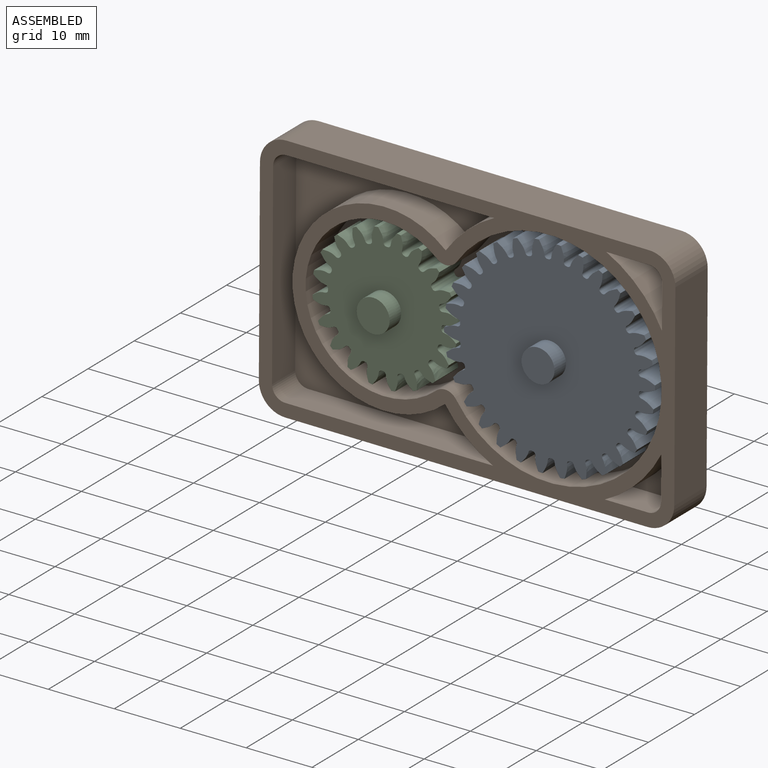
[diagram: assembled view]
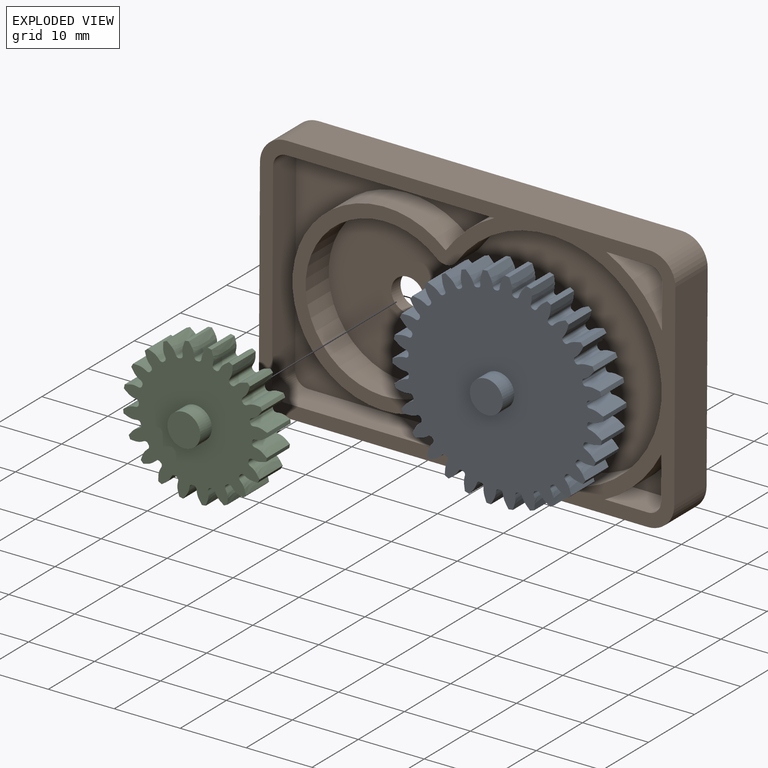
[diagram: exploded view]
GUIDED TOUR — MATED ASSEMBLY (Onshape document 583087b72f537610bfd2e5a7, AutoMate assembly 583087b72f537610bfd2e5a7_b645ddb2881b10e1bcf0ceef_fae67c98a6df52cfcd7068ac_default)

This assembly has 3 components, labeled P0..P2 below (a component is one placed occurrence of a part; the same part can appear more than once), held together by 2 mates. A mate is a constraint between two components; its type names the relative motion it leaves free:
  REVOLUTE — leaves rotation about the listed axis free (a hinge).
Axis/direction vectors are unit vectors and 'through' points are millimeter coordinates, both in the assembly's world frame.

MATES
  1. REVOLUTE "Revolute 1": P0 <-> P1, axis (0.000, 1.000, 0.000) through (-9.87, -35.20, 2.94) mm
  2. REVOLUTE "Revolute 2": P1 <-> P2, axis (0.000, -1.000, 0.000) through (-34.87, -35.20, 3.08) mm

ASSEMBLY ORDER
  1. P1 — the base component [order heuristic]
  2. P0 [order heuristic]
  3. P2 [order heuristic]
Order-tag legend:
  [order heuristic] — this assembly is geometrically interlocked (no collision-free removal order exists), so components are listed in mate-graph order; insertion feasibility is not verified.

Of the 3 components, 2 carry the full construction recipe — the FeatureScript program that regenerates the part's solid from scratch; the rest are supplied as boundary geometry only.
Each toured component is shown spotlighted twice — in the assembled view, then in the exploded view, where a leader line traces a displaced component back to its assembled socket (saturated green if recipe-attached, orange if geometry-only; every other component desaturated gray) — followed by its recipe or geometry summary and the mates that hold it.
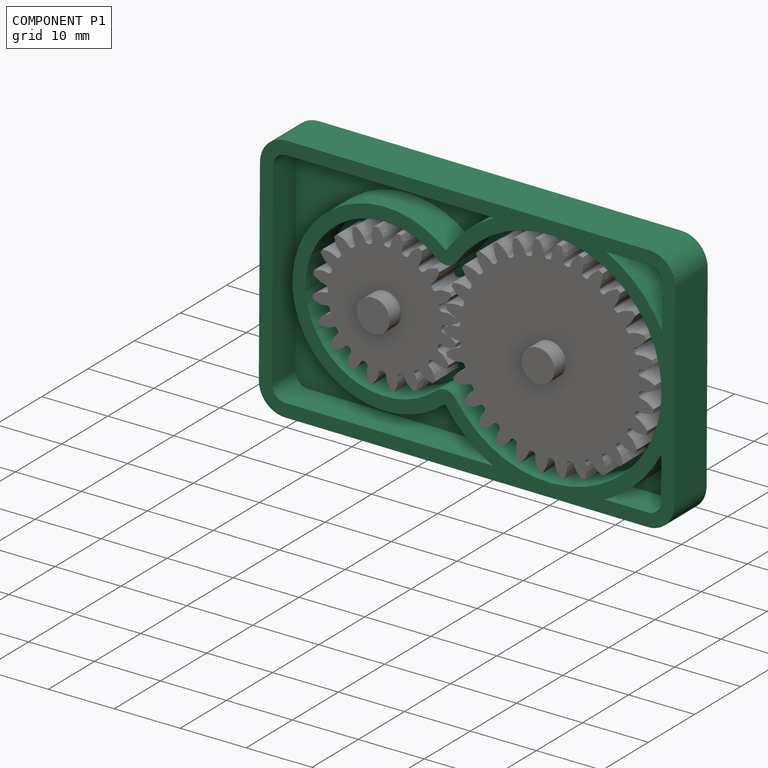
[diagram: component P1 — assembled]
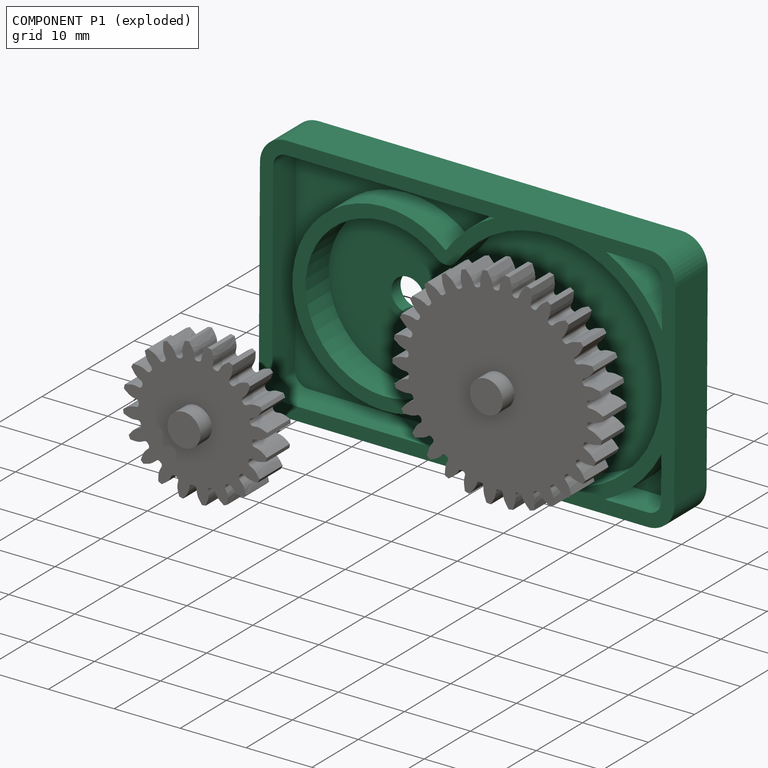
[diagram: component P1 — exploded]
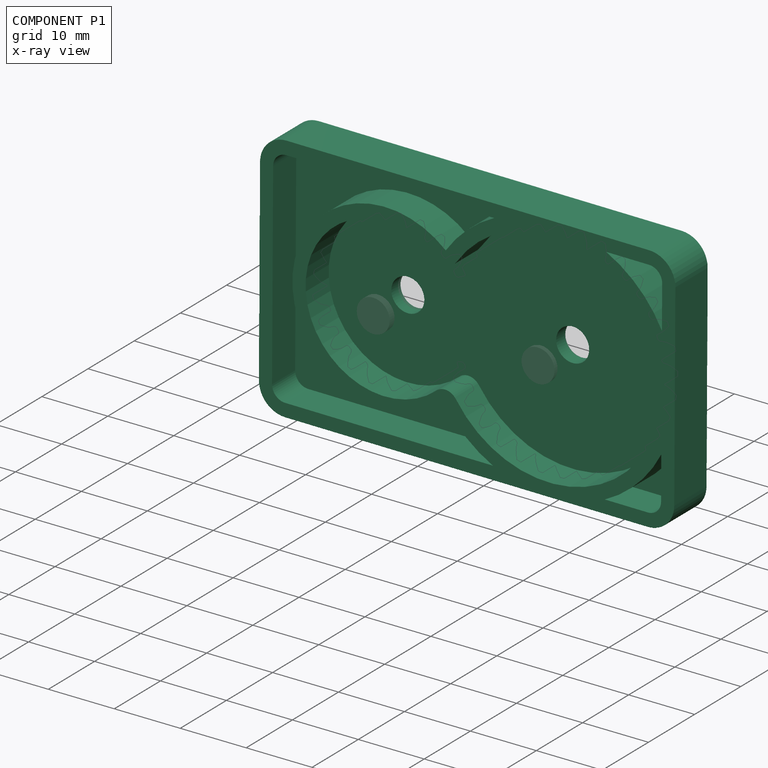
[diagram: component P1 — x-ray view]
COMPONENT P1 — recipe-attached (CADFS 00338432, mesh-verified: the recipe's output STEP matches this component's geometry to below the mesh-comparison resolution (tessellation chordal tolerance ~0.111 mm)).
Held by: REVOLUTE mate "Revolute 1" to P0; REVOLUTE mate "Revolute 2" to P2.
Construction recipe (FeatureScript — the CAD program that rebuilds this solid; sketch coordinates are in the units given by the * unit suffixes, e.g. mm):

FeatureScript 1511;
import(path : "onshape/std/geometry.fs", version : "1511.0");
import(path : "onshape/std/common.fs", version : "1511.0");
const mm = millimeter;
const VERTEX = EntityType.VERTEX;
const EDGE = EntityType.EDGE;
const FACE = EntityType.FACE;
const BODY = EntityType.BODY;
function v(x, y){return vector(x, y);}
function OD(order){return orderDisambiguation(order);}
function OSD(set){return originalSetDisambiguation(set);}
function TD(topology){return topologyDisambiguation(topology);}
function TDD(query){return trueDependencyDisambiguation(query);}
function sQuery(a, b, c) {return sketchEntityQuery(a, b, c);}

annotation { "Feature Type Name" : "Feature", "Feature Type Description" : "" }
export const myFeature = defineFeature(function(context is Context, id is Id, definition is map)
    precondition{}
    {
        {
            var Q0;
            Q0=qCreatedBy(makeId("Front.planeOp"),FACE);
            var sketch = newSketch(context, id + "F0", { "sketchPlane" : qUnion([Q0])});
            skLineSegment(sketch, "E0.bottom", {"start": v(27.5, 19) * mm, "end": v(-27.5, 19) * mm});
            skLineSegment(sketch, "E0.top", {"start": v(27.5, -19) * mm, "end": v(-27.5, -19) * mm});
            skLineSegment(sketch, "E0.left", {"start": v(31.5, 15) * mm, "end": v(31.5, -15) * mm});
            skLineSegment(sketch, "E0.right", {"start": v(-31.5, 15) * mm, "end": v(-31.5, -15) * mm});
            skPoint(sketch, "E0.middle", {"position": v(0, 0) * mm});
            skLineSegment(sketch, "E1", {"start": v(-31.5, 0) * mm, "end": v(31.5, 0) * mm, "construction": true});
            skPoint(sketch, "E2", {"position": v(-12.5, 0) * mm});
            skPoint(sketch, "E3", {"position": v(12.5, 0) * mm});
            skLineSegment(sketch, "E4", {"start": v(0, 19) * mm, "end": v(0, -19) * mm, "construction": true});
            skArc(sketch, "E5", {"start": v(-1.64, -9.44) * mm, "mid": v(29.5, 0) * mm, "end": v(-1.64, 9.44) * mm});
            skArc(sketch, "E6", {"start": v(-4.61, 9.05) * mm, "mid": v(-24.5, 0) * mm, "end": v(-4.61, -9.05) * mm});
            skPoint(sketch, "E7.visualSharp", {"position": v(-2.9, 7.2) * mm});
            skArc(sketch, "E7.filletArc", {"start": v(-4.61, 9.05) * mm, "mid": v(-3.04, 8.57) * mm, "end": v(-1.64, 9.44) * mm});
            skPoint(sketch, "E8.visualSharp", {"position": v(-2.9, -7.2) * mm});
            skArc(sketch, "E8.filletArc", {"start": v(-1.64, -9.44) * mm, "mid": v(-3.04, -8.57) * mm, "end": v(-4.61, -9.05) * mm});
            skPoint(sketch, "E9.visualSharp", {"position": v(-31.5, 19) * mm});
            skArc(sketch, "E9.filletArc", {"start": v(-27.5, 19) * mm, "mid": v(-30.33, 17.83) * mm, "end": v(-31.5, 15) * mm});
            skPoint(sketch, "E10.visualSharp", {"position": v(-31.5, -19) * mm});
            skArc(sketch, "E10.filletArc", {"start": v(-31.5, -15) * mm, "mid": v(-30.33, -17.83) * mm, "end": v(-27.5, -19) * mm});
            skPoint(sketch, "E11.visualSharp", {"position": v(31.5, -19) * mm});
            skArc(sketch, "E11.filletArc", {"start": v(27.5, -19) * mm, "mid": v(30.33, -17.83) * mm, "end": v(31.5, -15) * mm});
            skPoint(sketch, "E12.visualSharp", {"position": v(31.5, 19) * mm});
            skArc(sketch, "E12.filletArc", {"start": v(31.5, 15) * mm, "mid": v(30.33, 17.83) * mm, "end": v(27.5, 19) * mm});
            skSolve(sketch);
        }
        {
            var Q0;
            Q0 = qSketchRegion(id + "F0", true);
            extrude(context, id + "F1", {"entities" : qUnion([Q0]), "depth" : 5 * mm});
        }
        {
            var Q0;
            Q0=makeQuery(id+"F1.opExtrude","CAP_FACE",FACE,{"disambiguationData":[OSD([sQuery(id+"F0.wireOp",EDGE,"E0.bottom"),sQuery(id+"F0.wireOp",EDGE,"E0.top"),sQuery(id+"F0.wireOp",EDGE,"E0.left"),sQuery(id+"F0.wireOp",EDGE,"E0.right"),sQuery(id+"F0.wireOp",EDGE,"E5"),sQuery(id+"F0.wireOp",EDGE,"E6"),sQuery(id+"F0.wireOp",EDGE,"E7.filletArc"),sQuery(id+"F0.wireOp",EDGE,"E8.filletArc"),sQuery(id+"F0.wireOp",EDGE,"E9.filletArc"),sQuery(id+"F0.wireOp",EDGE,"E10.filletArc"),sQuery(id+"F0.wireOp",EDGE,"E11.filletArc"),sQuery(id+"F0.wireOp",EDGE,"E12.filletArc")])],"isStart":true});
            var sketch = newSketch(context, id + "F2", { "sketchPlane" : qUnion([Q0])});
            skLineSegment(sketch, "E13.bottom", {"start": v(-27.5, 19) * mm, "end": v(27.5, 19) * mm});
            skLineSegment(sketch, "E13.top", {"start": v(-27.5, -19) * mm, "end": v(27.5, -19) * mm});
            skLineSegment(sketch, "E13.left", {"start": v(-31.5, 15) * mm, "end": v(-31.5, -15) * mm});
            skLineSegment(sketch, "E13.right", {"start": v(31.5, 15) * mm, "end": v(31.5, -15) * mm});
            skPoint(sketch, "E13.middle", {"position": v(0, 0) * mm});
            skPoint(sketch, "E14.visualSharp", {"position": v(31.5, -19) * mm});
            skArc(sketch, "E14.filletArc", {"start": v(27.5, -19) * mm, "mid": v(30.33, -17.83) * mm, "end": v(31.5, -15) * mm});
            skPoint(sketch, "E15.visualSharp", {"position": v(-31.5, -19) * mm});
            skArc(sketch, "E15.filletArc", {"start": v(-31.5, -15) * mm, "mid": v(-30.33, -17.83) * mm, "end": v(-27.5, -19) * mm});
            skPoint(sketch, "E16.visualSharp", {"position": v(-31.5, 19) * mm});
            skArc(sketch, "E16.filletArc", {"start": v(-27.5, 19) * mm, "mid": v(-30.33, 17.83) * mm, "end": v(-31.5, 15) * mm});
            skPoint(sketch, "E17.visualSharp", {"position": v(31.5, 19) * mm});
            skArc(sketch, "E17.filletArc", {"start": v(31.5, 15) * mm, "mid": v(30.33, 17.83) * mm, "end": v(27.5, 19) * mm});
            skSolve(sketch);
        }
        {
            var Q0;
            Q0 = qSketchRegion(id + "F2", true);
            extrude(context, id + "F3", {"entities" : qUnion([Q0]), "operationType" : NewBodyOperationType.ADD, "depth" : 2 * mm});
        }
        {
            var Q0;
            Q0=makeQuery(id+"F1.opExtrude","CAP_FACE",FACE,{"disambiguationData":[OSD([sQuery(id+"F0.wireOp",EDGE,"E0.bottom"),sQuery(id+"F0.wireOp",EDGE,"E0.top"),sQuery(id+"F0.wireOp",EDGE,"E0.left"),sQuery(id+"F0.wireOp",EDGE,"E0.right"),sQuery(id+"F0.wireOp",EDGE,"E5"),sQuery(id+"F0.wireOp",EDGE,"E6"),sQuery(id+"F0.wireOp",EDGE,"E7.filletArc"),sQuery(id+"F0.wireOp",EDGE,"E8.filletArc"),sQuery(id+"F0.wireOp",EDGE,"E9.filletArc"),sQuery(id+"F0.wireOp",EDGE,"E10.filletArc"),sQuery(id+"F0.wireOp",EDGE,"E11.filletArc"),sQuery(id+"F0.wireOp",EDGE,"E12.filletArc")])],"isStart":false});
            shell(context, id + "F4", {"entities" : qUnion([Q0]), "thickness" : 2 * mm});
        }
        {
            var Q0;
            Q0=makeQuery(id+"F3.opExtrude","CAP_FACE",FACE,{"disambiguationData":[OSD([sQuery(id+"F2.wireOp",EDGE,"E13.bottom"),sQuery(id+"F2.wireOp",EDGE,"E13.top"),sQuery(id+"F2.wireOp",EDGE,"E13.left"),sQuery(id+"F2.wireOp",EDGE,"E13.right"),sQuery(id+"F2.wireOp",EDGE,"E14.filletArc"),sQuery(id+"F2.wireOp",EDGE,"E15.filletArc"),sQuery(id+"F2.wireOp",EDGE,"E16.filletArc"),sQuery(id+"F2.wireOp",EDGE,"E17.filletArc")])],"isStart":true});
            var sketch = newSketch(context, id + "F5", { "sketchPlane" : qUnion([Q0])});
            skCircle(sketch, "E18", {"center": v(-12.5, 0) * mm, "radius": 2.5 * mm});
            skCircle(sketch, "E19", {"center": v(12.5, 0) * mm, "radius": 2.5 * mm});
            skSolve(sketch);
        }
        {
            var Q0;
            Q0 = qSketchRegion(id + "F5", true);
            var Q1;
            Q1=makeQuery(id+"F3.opExtrude","CAP_FACE",FACE,{"disambiguationData":[OSD([sQuery(id+"F2.wireOp",EDGE,"E13.bottom"),sQuery(id+"F2.wireOp",EDGE,"E13.top"),sQuery(id+"F2.wireOp",EDGE,"E13.left"),sQuery(id+"F2.wireOp",EDGE,"E13.right"),sQuery(id+"F2.wireOp",EDGE,"E14.filletArc"),sQuery(id+"F2.wireOp",EDGE,"E15.filletArc"),sQuery(id+"F2.wireOp",EDGE,"E16.filletArc"),sQuery(id+"F2.wireOp",EDGE,"E17.filletArc")])],"isStart":false});
            extrude(context, id + "F6", {"entities" : qUnion([Q0]), "operationType" : NewBodyOperationType.REMOVE, "endBound" : BoundingType.UP_TO_SURFACE, "oppositeDirection" : true, "endBoundEntityFace" : qUnion([Q1]), "depth" : 25 * mm});
        }
    });
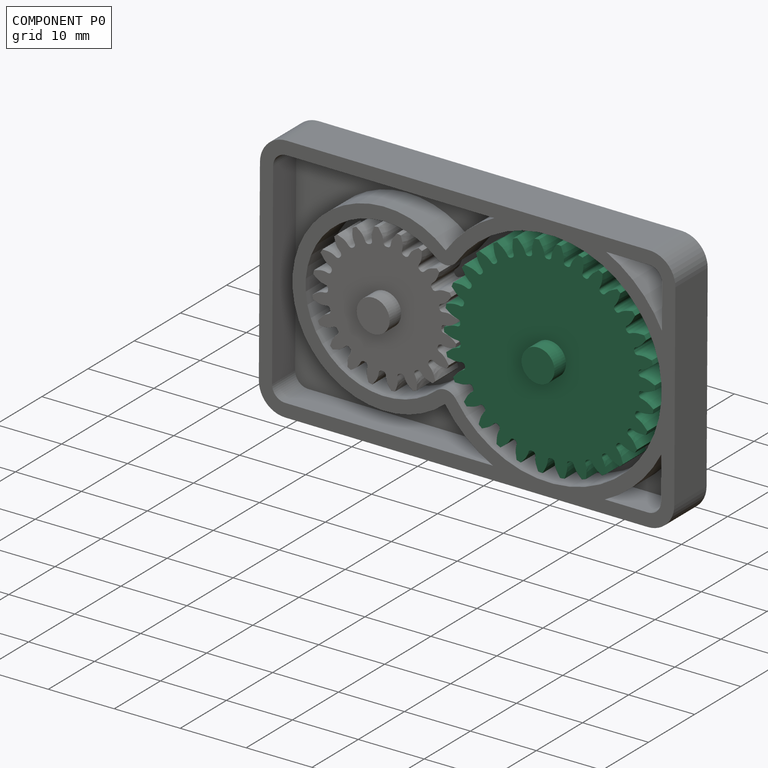
[diagram: component P0 — assembled]
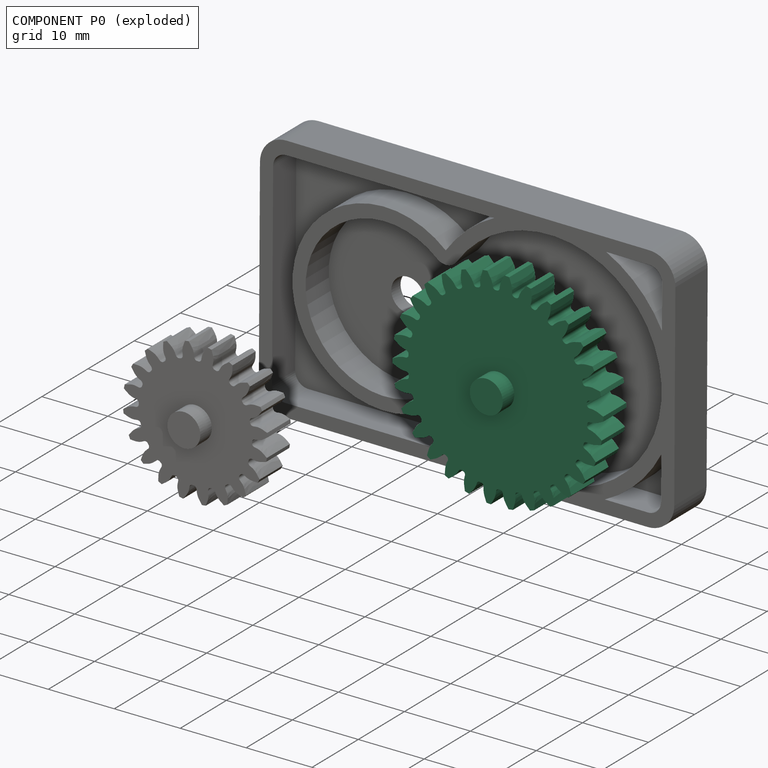
[diagram: component P0 — exploded]
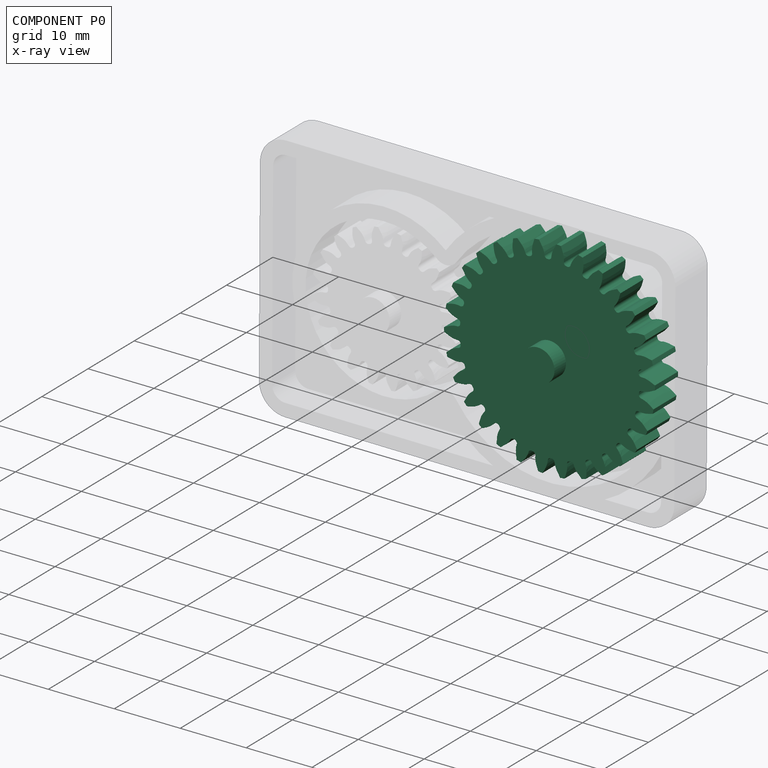
[diagram: component P0 — x-ray view]
COMPONENT P0 — recipe-attached (CADFS 00338430, mesh-verified: the recipe's output STEP matches this component's geometry to below the mesh-comparison resolution (tessellation chordal tolerance ~0.0695 mm)).
Held by: REVOLUTE mate "Revolute 1" to P1.
Construction recipe (FeatureScript — the CAD program that rebuilds this solid; sketch coordinates are in the units given by the * unit suffixes, e.g. mm):

FeatureScript 1511;
import(path : "onshape/std/geometry.fs", version : "1511.0");
import(path : "onshape/std/common.fs", version : "1511.0");
const mm = millimeter;
const VERTEX = EntityType.VERTEX;
const EDGE = EntityType.EDGE;
const FACE = EntityType.FACE;
const BODY = EntityType.BODY;
function v(x, y){return vector(x, y);}
function OD(order){return orderDisambiguation(order);}
function OSD(set){return originalSetDisambiguation(set);}
function TD(topology){return topologyDisambiguation(topology);}
function TDD(query){return trueDependencyDisambiguation(query);}
function sQuery(a, b, c) {return sketchEntityQuery(a, b, c);}

annotation { "Feature Type Name" : "Feature", "Feature Type Description" : "" }
export const myFeature = defineFeature(function(context is Context, id is Id, definition is map)
    precondition{}
    {
        {
            assignVariable(context, id + "F0", {"name" : "N", "anyValue" : 30});
        }
        {
            assignVariable(context, id + "F1", {"name" : "WoF", "anyValue" : 5});
        }
        {
            var Q0;
            Q0=qCreatedBy(makeId("Front.planeOp"),FACE);
            var sketch = newSketch(context, id + "F2", { "sketchPlane" : qUnion([Q0])});
            skCircle(sketch, "E0", {"center": v(0, 0) * mm, "radius": 13.6 * mm});
            skSolve(sketch);
        }
        {
            var Q0;
            Q0=qSketchRegion(id+"F2",true);
            extrude(context, id + "F3", {"entities" : qUnion([Q0]), "endBound" : BoundingType.SYMMETRIC, "depth" : (getVariable(context, 'WoF')) * mm});
        }
        {
            var Q0;
            Q0=qCreatedBy(makeId("Front.planeOp"),FACE);
            var sketch = newSketch(context, id + "F4", { "sketchPlane" : qUnion([Q0])});
            skCircle(sketch, "E1", {"center": v(0, 0) * mm, "radius": 15 * mm, "construction": true});
            skCircle(sketch, "E2", {"center": v(0, 0) * mm, "radius": 16 * mm, "construction": true});
            skLineSegment(sketch, "E3", {"start": v(0, 0) * mm, "end": v(0, 15) * mm, "construction": true});
            skPoint(sketch, "E4", {"position": v(0, 15) * mm});
            skLineSegment(sketch, "E5", {"start": v(-4.82, 13.25) * mm, "end": v(0, 0) * mm, "construction": true});
            skArc(sketch, "E6", {"start": v(-4.82, 13.25) * mm, "mid": v(-3.68, 13.6) * mm, "end": v(-2.5, 13.87) * mm, "construction": true});
            skArc(sketch, "E7", {"start": v(-4.82, 13.25) * mm, "mid": v(-6.47, 12.52) * mm, "end": v(-8.01, 11.6) * mm, "construction": true});
            skArc(sketch, "E8", {"start": v(-2.5, 13.87) * mm, "mid": v(-1.15, 14.05) * mm, "end": v(0.21, 14.1) * mm, "construction": true});
            skLineSegment(sketch, "E9", {"start": v(0, 15) * mm, "end": v(0, 16) * mm, "construction": true});
            skLineSegment(sketch, "E10", {"start": v(0, 15) * mm, "end": v(-4.82, 13.25) * mm, "construction": true});
            skLineSegment(sketch, "E11", {"start": v(0, 15) * mm, "end": v(-5.57, 15) * mm, "construction": true});
            skLineSegment(sketch, "E12", {"start": v(-8.01, 11.6) * mm, "end": v(-0.83, 16.56) * mm, "construction": true});
            skLineSegment(sketch, "E13", {"start": v(-2.5, 13.87) * mm, "end": v(0.18, 14.36) * mm, "construction": true});
            skLineSegment(sketch, "E14", {"start": v(0, 0) * mm, "end": v(-0.84, 15.98) * mm, "construction": true});
            skCircle(sketch, "E15", {"center": v(0, 0) * mm, "radius": 13.6 * mm, "construction": true});
            skLineSegment(sketch, "E16", {"start": v(0, 0) * mm, "end": v(0.71, 13.58) * mm, "construction": true});
            skPoint(sketch, "E17", {"position": v(0.21, 14.1) * mm});
            skPoint(sketch, "E18", {"position": v(0.18, 14.36) * mm});
            skPoint(sketch, "E19", {"position": v(-0.83, 16.56) * mm});
            skPoint(sketch, "E20", {"position": v(-0.84, 15.98) * mm});
            skPoint(sketch, "E21", {"position": v(0.71, 13.58) * mm});
            skCircle(sketch, "E22", {"center": v(0, 0) * mm, "radius": 14 * mm, "construction": true});
            skFitSpline(sketch, "E23", {"points": [v(-0.83, 16.56) * mm, v(0, 15) * mm, v(0.18, 14.36) * mm, v(0.21, 14.1) * mm], "startDerivative": vector(1.97, -3.39) * mm, "endDerivative": vector(0.1, -1.25) * mm});
            skArc(sketch, "E24", {"start": v(-0.84, 15.98) * mm, "mid": v(-0.67, 15.99) * mm, "end": v(-0.5, 16) * mm});
            skLineSegment(sketch, "E25", {"start": v(-0.5, 16) * mm, "end": v(-0.5, 16) * mm});
            skLineSegment(sketch, "E26", {"start": v(0.21, 14.1) * mm, "end": v(0.22, 14) * mm});
            skArc(sketch, "E27", {"start": v(0.56, 13.59) * mm, "mid": v(-0.07, 13.6) * mm, "end": v(-0.71, 13.58) * mm});
            skArc(sketch, "E28", {"start": v(0.22, 14) * mm, "mid": v(0.32, 13.73) * mm, "end": v(0.56, 13.59) * mm});
            skArc(sketch, "E29.MirrorCS", {"start": v(-1.98, 13.46) * mm, "mid": v(-1.35, 13.53) * mm, "end": v(-0.71, 13.58) * mm});
            skArc(sketch, "E30.MirrorCS", {"start": v(-1.68, 13.9) * mm, "mid": v(-1.75, 13.63) * mm, "end": v(-1.98, 13.46) * mm});
            skLineSegment(sketch, "E31.MirrorCS", {"start": v(-1.68, 14) * mm, "end": v(-1.68, 13.9) * mm});
            skFitSpline(sketch, "E32.MirrorCS", {"points": [v(-0.9, 16.56) * mm, v(-1.57, 14.92) * mm, v(-1.68, 14.26) * mm, v(-1.68, 14) * mm], "startDerivative": vector(-1.6, -3.57) * mm, "endDerivative": vector(0.02, -1.25) * mm});
            skArc(sketch, "E33.MirrorCS", {"start": v(-0.84, 15.98) * mm, "mid": v(-1, 15.97) * mm, "end": v(-1.17, 15.96) * mm});
            skSolve(sketch);
        }
        {
            var Q0;
            Q0=qSketchRegion(id+"F4",true);
            var Q1;
            Q1=makeQuery(id+"F3.opExtrude","CAP_FACE",FACE,{"disambiguationData":[OSD([sQuery(id+"F2.wireOp",EDGE,"E0"),sQuery(id+"F2.wireOp",EDGE,"ypchOyP9-PMkg-Z84X-TmPn-hLIgu99tQz8k")])],"isStart":false});
            extrude(context, id + "F5", {"entities" : qUnion([Q0]), "endBound" : BoundingType.SYMMETRIC, "endBoundEntityFace" : qUnion([Q1]), "depth" : (getVariable(context, 'WoF')) * mm});
        }
        {
            var Q0;
            Q0=makeQuery(id+"F5.opExtrude","SWEPT_BODY",BODY,{"disambiguationData":[OSD([sQuery(id+"F4.wireOp",EDGE,"E23"),sQuery(id+"F4.wireOp",EDGE,"E24"),sQuery(id+"F4.wireOp",EDGE,"E26"),sQuery(id+"F4.wireOp",EDGE,"E27"),sQuery(id+"F4.wireOp",EDGE,"E28"),sQuery(id+"F4.wireOp",EDGE,"E29.MirrorCS"),sQuery(id+"F4.wireOp",EDGE,"E30.MirrorCS"),sQuery(id+"F4.wireOp",EDGE,"E31.MirrorCS"),sQuery(id+"F4.wireOp",EDGE,"E32.MirrorCS"),sQuery(id+"F4.wireOp",EDGE,"E33.MirrorCS")])]});
            var Q1;
            Q1=makeQuery(id+"F3.opExtrude","CAP_EDGE",EDGE,{"disambiguationData":[OSD([sQuery(id+"F2.wireOp",EDGE,"E0")])],"isStart":false});
            circularPattern(context, id + "F6", {"operationType" : NewBodyOperationType.ADD, "entities" : qUnion([Q0]), "axis" : qUnion([Q1]), "angle" : 360 * degree, "instanceCount" : getVariable(context, 'N'), "equalSpace" : true});
        }
        {
            var Q0;
            Q0=qCreatedBy(makeId("Front.planeOp"),FACE);
            var sketch = newSketch(context, id + "F7", { "sketchPlane" : qUnion([Q0])});
            skCircle(sketch, "E34", {"center": v(0, 0) * mm, "radius": 2.5 * mm});
            skSolve(sketch);
        }
        {
            var Q0;
            Q0 = qSketchRegion(id + "F7", true);
            extrude(context, id + "F8", {"entities" : qUnion([Q0]), "operationType" : NewBodyOperationType.ADD, "endBound" : BoundingType.SYMMETRIC, "depth" : 10 * mm});
        }
    });
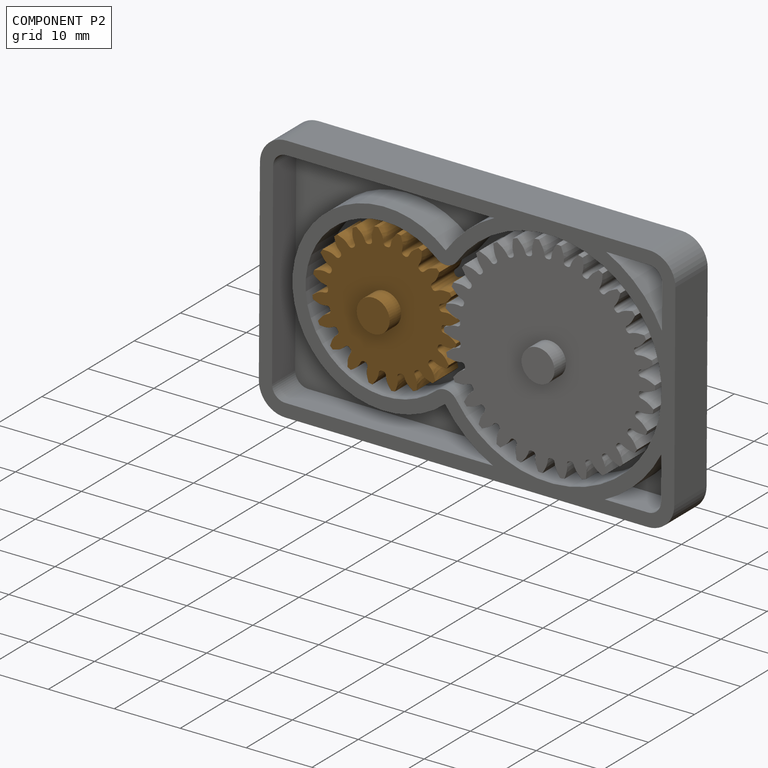
[diagram: component P2 — assembled]
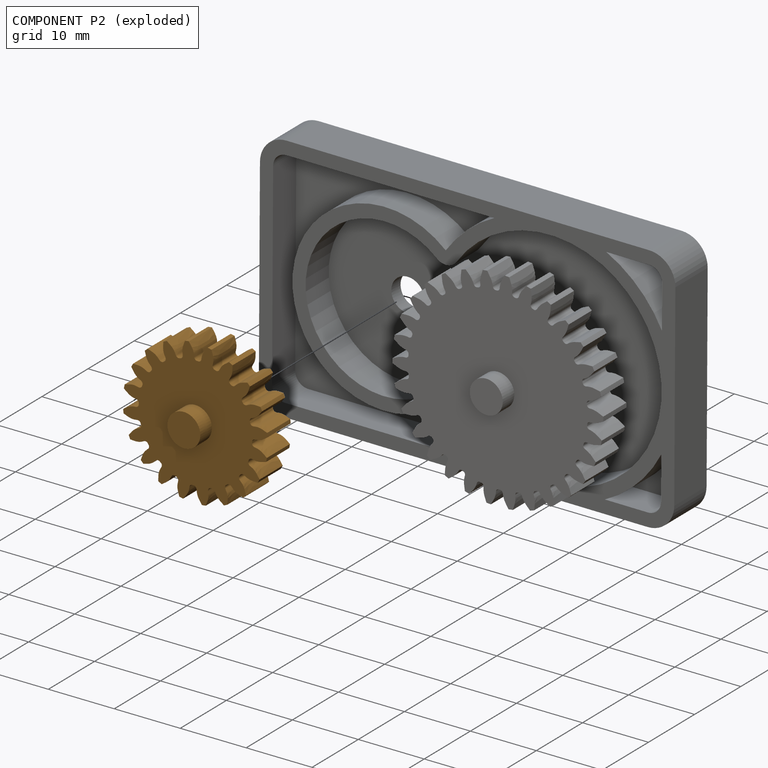
[diagram: component P2 — exploded]
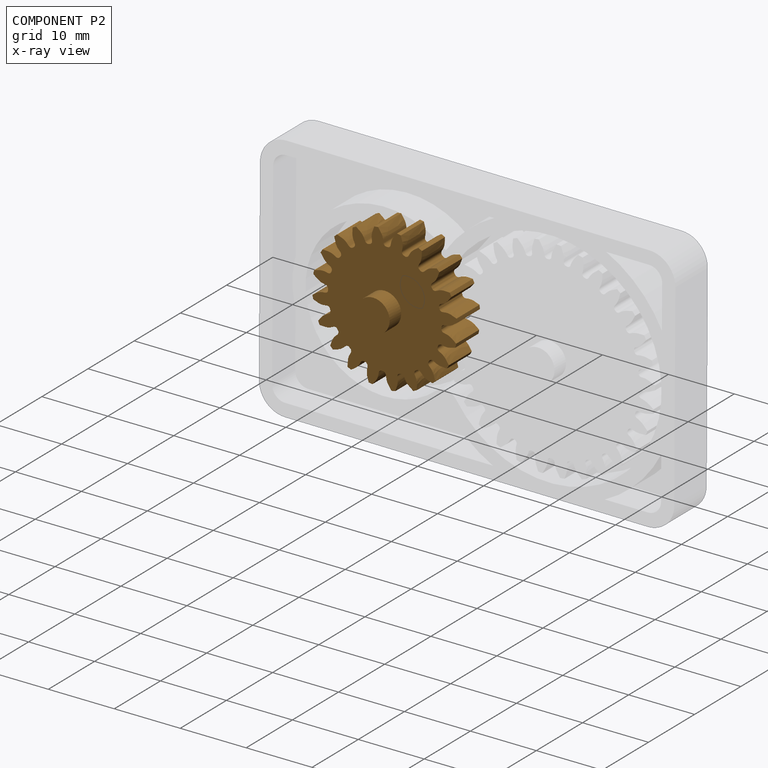
[diagram: component P2 — x-ray view]
COMPONENT P2 — geometry summary (no construction recipe available for this part):
  bounding box: 22.0 x 22.0 x 10.0 mm
  B-rep topology: 1 solid, 166 faces, 976 edges
  volume: 1621 mm^3 (33% of its bounding box)
  symmetry: 4-fold rotationally symmetric about the y axis; mirror-symmetric across its y mid-plane
Held by: REVOLUTE mate "Revolute 2" to P1.
PROVENANCE & LICENSES
Assembly (occurrences, transforms, mates, per-part STEP geometry): AutoMate dataset, Zenodo record 7776208, CC0.
Construction recipes: CADFS (HuggingFace VladPyatov/CADFS, CC-BY-4.0, layered over the ABC dataset), FeatureScript reconstruction programs keyed by ABC model id.
Join: ABC meta listings map ABC model id -> Onshape documentId; within a shared document, parts are matched by geometric signature (bounding-box dims + volume at 0.1% relative tolerance, exact B-rep face/solid counts).
Verification: 2 of this assembly's 3 components carry a recipe attachment, and every attachment is mesh-verified: the CADFS STEP and the AutoMate member STEP were compared as meshes in their shared local frame (symmetric sampled-point-to-mesh distance); worst across the 2 attachments: below the mesh-comparison resolution (tessellation chordal tolerance ~0.111 mm) on a 74 mm part.
Renders: orthographic iso camera (az 35 / el 25); the floor grid conveys scale (grid pitch printed in each image; no ruler). In the exploded view each component is displaced by its stored offset vector: the offsets alone carry the explosion direction (mate normal/axis signs are not orientation cues and do not encode it), and separation distances are assigned per mate-chain, not proportionally to assembly-order depth.
